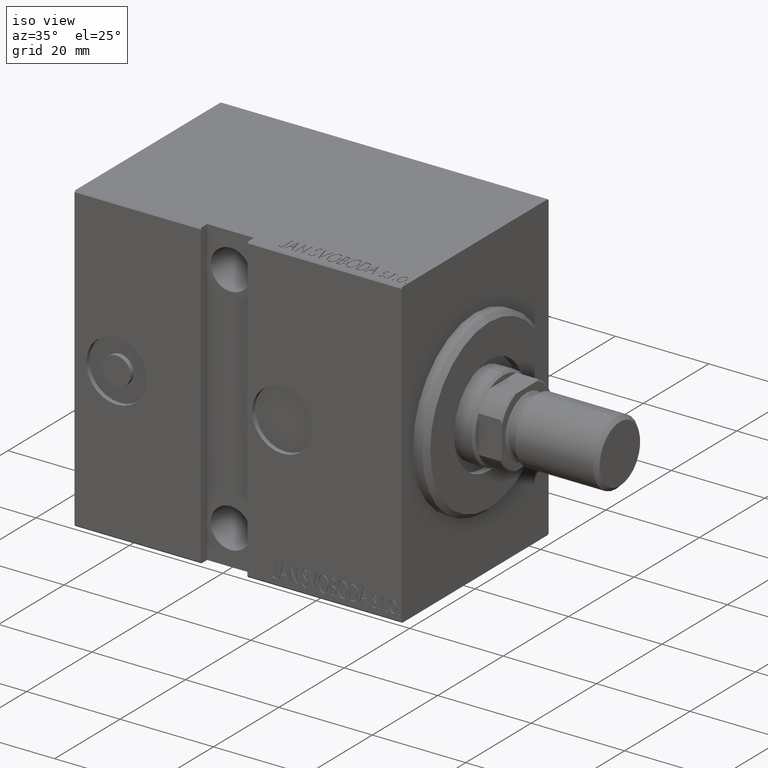
[diagram: clean part render]
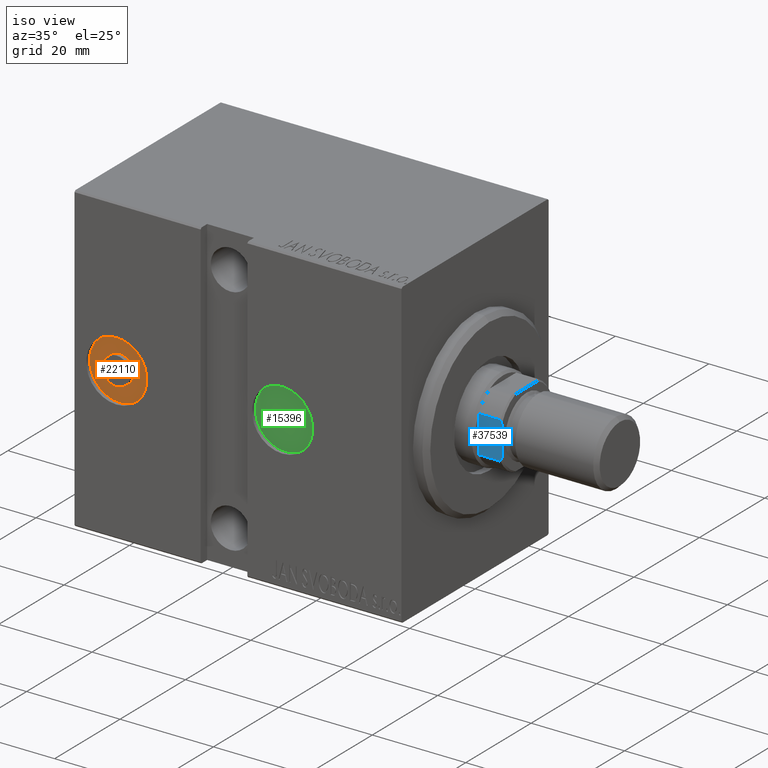
[diagram: same view with three faces highlighted in distinct colors, each labeled with its STEP entity id]
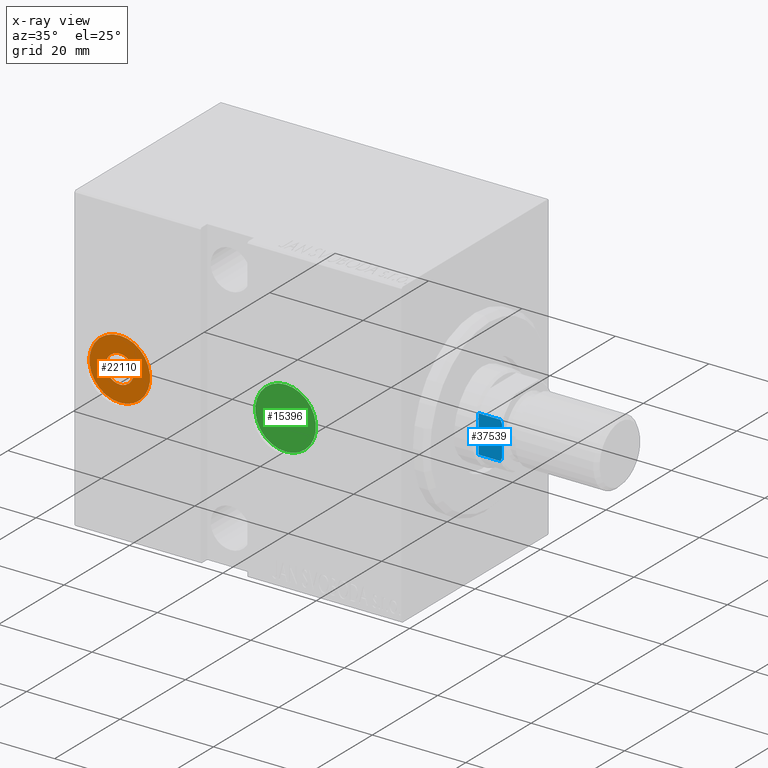
[diagram: x-ray of the same camera — body ghosted, the three highlighted faces saturated]
A machine part, iso view with three faces highlighted in distinct colors.
The next image is the same camera in x-ray (body ghosted, the three faces saturated) — at least one of them is partly hidden behind the body in this view.
Their STEP definitions:

[orange] entity #22110 — the highlighted planar face has unit normal (-0, -1, 0).
#1685 = DIRECTION ( 'NONE',  ( 1.848892746611746419E-32, 1.000000000000000000, 8.851255261214056290E-17 ) ) ;
#1911 = ORIENTED_EDGE ( 'NONE', *, *, #18059, .F. ) ;
#3103 = ORIENTED_EDGE ( 'NONE', *, *, #16566, .T. ) ;
#3755 = DIRECTION ( 'NONE',  ( 1.848892746611746419E-32, 1.000000000000000000, 8.851255261214056290E-17 ) ) ;
#4606 = ORIENTED_EDGE ( 'NONE', *, *, #17651, .T. ) ;
#4622 = DIRECTION ( 'NONE',  ( 1.848892746611746419E-32, 1.000000000000000000, 8.851255261214056290E-17 ) ) ;
#5827 = CIRCLE ( 'NONE', #12781, 3.000000000000007994 ) ;
#6565 = VERTEX_POINT ( 'NONE', #15745 ) ;
#6833 = CARTESIAN_POINT ( 'NONE',  ( 61.00000000000001421, 21.50000000000000000, 3.000000000000010214 ) ) ;
#6863 = VERTEX_POINT ( 'NONE', #13907 ) ;
#7383 = ORIENTED_EDGE ( 'NONE', *, *, #40901, .F. ) ;
#8944 = CARTESIAN_POINT ( 'NONE',  ( 61.00000000000001421, 21.50000000000000000, -6.499999999999999112 ) ) ;
#10196 = PLANE ( 'NONE',  #15648 ) ;
#11094 = CIRCLE ( 'NONE', #35436, 3.000000000000007994 ) ;
#11148 = DIRECTION ( 'NONE',  ( 0.000000000000000000, 0.000000000000000000, 1.000000000000000000 ) ) ;
#11541 = EDGE_LOOP ( 'NONE', ( #3103, #4606 ) ) ;
#11685 = DIRECTION ( 'NONE',  ( 0.000000000000000000, 0.000000000000000000, 1.000000000000000000 ) ) ;
#12753 = AXIS2_PLACEMENT_3D ( 'NONE', #25821, #1685, #11685 ) ;
#12781 = AXIS2_PLACEMENT_3D ( 'NONE', #13816, #20135, #40146 ) ;
#13816 = CARTESIAN_POINT ( 'NONE',  ( 61.00000000000001421, 21.50000000000000000, 2.275763105547195299E-15 ) ) ;
#13907 = CARTESIAN_POINT ( 'NONE',  ( 61.00000000000001421, 21.50000000000000000, -3.000000000000006217 ) ) ;
#13952 = EDGE_LOOP ( 'NONE', ( #1911, #7383 ) ) ;
#15648 = AXIS2_PLACEMENT_3D ( 'NONE', #26524, #33047, #23676 ) ;
#15745 = CARTESIAN_POINT ( 'NONE',  ( 61.00000000000001421, 21.50000000000000000, 6.500000000000004441 ) ) ;
#16234 = CIRCLE ( 'NONE', #12753, 6.500000000000001776 ) ;
#16521 = FACE_OUTER_BOUND ( 'NONE', #11541, .T. ) ;
#16566 = EDGE_CURVE ( 'NONE', #6565, #28240, #16234, .T. ) ;
#17651 = EDGE_CURVE ( 'NONE', #28240, #6565, #23165, .T. ) ;
#18059 = EDGE_CURVE ( 'NONE', #34069, #6863, #5827, .T. ) ;
#20135 = DIRECTION ( 'NONE',  ( 1.848892746611746419E-32, 1.000000000000000000, 8.851255261214056290E-17 ) ) ;
#22110 = ADVANCED_FACE ( 'NONE', ( #33683, #16521 ), #10196, .T. ) ;
#23165 = CIRCLE ( 'NONE', #28743, 6.500000000000001776 ) ;
#23676 = DIRECTION ( 'NONE',  ( 0.000000000000000000, -8.851255261214056290E-17, 1.000000000000000000 ) ) ;
#23754 = CARTESIAN_POINT ( 'NONE',  ( 61.00000000000001421, 21.50000000000000000, 2.275763105547195299E-15 ) ) ;
#23764 = CARTESIAN_POINT ( 'NONE',  ( 61.00000000000001421, 21.50000000000000000, 2.275763105547195299E-15 ) ) ;
#25821 = CARTESIAN_POINT ( 'NONE',  ( 61.00000000000001421, 21.50000000000000000, 2.275763105547195299E-15 ) ) ;
#26524 = CARTESIAN_POINT ( 'NONE',  ( 4.160008679876429443E-31, 21.50000000000000000, 1.865370726429394705E-15 ) ) ;
#28240 = VERTEX_POINT ( 'NONE', #8944 ) ;
#28743 = AXIS2_PLACEMENT_3D ( 'NONE', #23764, #4622, #11148 ) ;
#33047 = DIRECTION ( 'NONE',  ( 1.848892746611746419E-32, 1.000000000000000000, 8.851255261214056290E-17 ) ) ;
#33683 = FACE_BOUND ( 'NONE', #13952, .T. ) ;
#34069 = VERTEX_POINT ( 'NONE', #6833 ) ;
#35436 = AXIS2_PLACEMENT_3D ( 'NONE', #23754, #3755, #36602 ) ;
#36602 = DIRECTION ( 'NONE',  ( 0.000000000000000000, 0.000000000000000000, 1.000000000000000000 ) ) ;
#40146 = DIRECTION ( 'NONE',  ( 0.000000000000000000, 0.000000000000000000, 1.000000000000000000 ) ) ;
#40901 = EDGE_CURVE ( 'NONE', #6863, #34069, #11094, .T. ) ;

[blue] entity #37539 — the highlighted planar face has unit normal (0, 1, 0).
#1016 = ORIENTED_EDGE ( 'NONE', *, *, #37237, .T. ) ;
#1708 = VERTEX_POINT ( 'NONE', #23343 ) ;
#2363 = EDGE_CURVE ( 'NONE', #30855, #14914, #7216, .T. ) ;
#4306 = DIRECTION ( 'NONE',  ( 0.000000000000000000, -0.000000000000000000, 1.000000000000000000 ) ) ;
#4523 = B_SPLINE_CURVE_WITH_KNOTS ( 'NONE', 3,
 ( #31551, #15033, #14378, #11770 ),
 .UNSPECIFIED., .F., .F.,
 ( 4, 4 ),
 ( 0.000000000000000000, 0.0007477064084242632681 ),
 .UNSPECIFIED. ) ;
#7019 = DIRECTION ( 'NONE',  ( -0.000000000000000000, -0.000000000000000000, 1.000000000000000000 ) ) ;
#7216 = B_SPLINE_CURVE_WITH_KNOTS ( 'NONE', 3,
 ( #33896, #17372, #30628, #28884 ),
 .UNSPECIFIED., .F., .F.,
 ( 4, 4 ),
 ( 1.301042606982605321E-18, 0.0007477064084242215263 ),
 .UNSPECIFIED. ) ;
#8959 = VECTOR ( 'NONE', #16579, 1000.000000000000000 ) ;
#10048 = CARTESIAN_POINT ( 'NONE',  ( -7.499999999999999112, -7.499999999999998224, 75.00000000000001421 ) ) ;
#11392 = EDGE_CURVE ( 'NONE', #1708, #34159, #30718, .T. ) ;
#11770 = CARTESIAN_POINT ( 'NONE',  ( 3.315116890850187570, -7.499999999999996447, 75.00000000000001421 ) ) ;
#11966 = CARTESIAN_POINT ( 'NONE',  ( -7.499999999999999112, -7.499999999999998224, 70.00000000000000000 ) ) ;
#11997 = DIRECTION ( 'NONE',  ( -0.000000000000000000, -0.000000000000000000, 1.000000000000000000 ) ) ;
#12392 = DIRECTION ( 'NONE',  ( 1.000000000000000000, 0.000000000000000000, 0.000000000000000000 ) ) ;
#12822 = CARTESIAN_POINT ( 'NONE',  ( -3.315116890850222653, -7.499999999999998224, 75.00000000000001421 ) ) ;
#13109 = LINE ( 'NONE', #10048, #8959 ) ;
#13962 = CARTESIAN_POINT ( 'NONE',  ( -4.000000000000000000, -7.500000000000000888, 74.70000000000004547 ) ) ;
#14378 = CARTESIAN_POINT ( 'NONE',  ( 3.546278369582418488, -7.499999999999998224, 74.90654544845632756 ) ) ;
#14656 = ORIENTED_EDGE ( 'NONE', *, *, #25407, .F. ) ;
#14914 = VERTEX_POINT ( 'NONE', #13962 ) ;
#15033 = CARTESIAN_POINT ( 'NONE',  ( 3.774404943294770831, -7.500000000000000888, 74.80616237962600223 ) ) ;
#16567 = AXIS2_PLACEMENT_3D ( 'NONE', #21050, #30394, #4306 ) ;
#16579 = DIRECTION ( 'NONE',  ( 1.000000000000000000, 0.000000000000000000, 0.000000000000000000 ) ) ;
#17372 = CARTESIAN_POINT ( 'NONE',  ( -3.546278369582397616, -7.499999999999998224, 74.90654544845624230 ) ) ;
#18033 = VERTEX_POINT ( 'NONE', #36878 ) ;
#19529 = ORIENTED_EDGE ( 'NONE', *, *, #38460, .T. ) ;
#21050 = CARTESIAN_POINT ( 'NONE',  ( -7.499999999999999112, -7.499999999999998224, 75.00000000000001421 ) ) ;
#23343 = CARTESIAN_POINT ( 'NONE',  ( 4.000000000000000000, -7.500000000000000888, 70.00000000000001421 ) ) ;
#23399 = ORIENTED_EDGE ( 'NONE', *, *, #38888, .F. ) ;
#23544 = CARTESIAN_POINT ( 'NONE',  ( 4.000000000000000000, -7.500000000000000888, -0.001000000000001000089 ) ) ;
#24604 = LINE ( 'NONE', #37878, #26164 ) ;
#25407 = EDGE_CURVE ( 'NONE', #18033, #14914, #24604, .T. ) ;
#26164 = VECTOR ( 'NONE', #11997, 1000.000000000000000 ) ;
#27144 = PLANE ( 'NONE',  #16567 ) ;
#28884 = CARTESIAN_POINT ( 'NONE',  ( -4.000000000000000000, -7.500000000000000888, 74.70000000000004547 ) ) ;
#28924 = LINE ( 'NONE', #11966, #29090 ) ;
#29090 = VECTOR ( 'NONE', #12392, 1000.000000000000000 ) ;
#30394 = DIRECTION ( 'NONE',  ( 0.000000000000000000, 1.000000000000000000, 0.000000000000000000 ) ) ;
#30628 = CARTESIAN_POINT ( 'NONE',  ( -3.774404943294797921, -7.499999999999998224, 74.80616237962605908 ) ) ;
#30718 = LINE ( 'NONE', #23544, #39699 ) ;
#30855 = VERTEX_POINT ( 'NONE', #12822 ) ;
#31551 = CARTESIAN_POINT ( 'NONE',  ( 4.000000000000000000, -7.500000000000000888, 74.70000000000001705 ) ) ;
#33896 = CARTESIAN_POINT ( 'NONE',  ( -3.315116890850222653, -7.499999999999998224, 75.00000000000001421 ) ) ;
#34159 = VERTEX_POINT ( 'NONE', #40555 ) ;
#35046 = VERTEX_POINT ( 'NONE', #35121 ) ;
#35121 = CARTESIAN_POINT ( 'NONE',  ( 3.315116890850187570, -7.499999999999996447, 75.00000000000001421 ) ) ;
#36878 = CARTESIAN_POINT ( 'NONE',  ( -4.000000000000000000, -7.500000000000000888, 70.00000000000001421 ) ) ;
#37237 = EDGE_CURVE ( 'NONE', #18033, #1708, #28924, .T. ) ;
#37365 = FACE_OUTER_BOUND ( 'NONE', #41081, .T. ) ;
#37539 = ADVANCED_FACE ( 'NONE', ( #37365 ), #27144, .F. ) ;
#37647 = ORIENTED_EDGE ( 'NONE', *, *, #2363, .T. ) ;
#37878 = CARTESIAN_POINT ( 'NONE',  ( -4.000000000000000000, -7.500000000000000888, -0.001000000000001000089 ) ) ;
#38460 = EDGE_CURVE ( 'NONE', #34159, #35046, #4523, .T. ) ;
#38888 = EDGE_CURVE ( 'NONE', #30855, #35046, #13109, .T. ) ;
#39699 = VECTOR ( 'NONE', #7019, 1000.000000000000000 ) ;
#40555 = CARTESIAN_POINT ( 'NONE',  ( 4.000000000000000000, -7.500000000000000888, 74.70000000000001705 ) ) ;
#41018 = ORIENTED_EDGE ( 'NONE', *, *, #11392, .T. ) ;
#41081 = EDGE_LOOP ( 'NONE', ( #41018, #19529, #23399, #37647, #14656, #1016 ) ) ;

[green] entity #15396 — the highlighted planar face has unit normal (-0, -1, 0).
#1425 = EDGE_LOOP ( 'NONE', ( #28713, #13062 ) ) ;
#1719 = DIRECTION ( 'NONE',  ( 1.848892746611746419E-32, 1.000000000000000000, 8.851255261214056290E-17 ) ) ;
#3015 = PLANE ( 'NONE',  #23820 ) ;
#3187 = CIRCLE ( 'NONE', #33724, 6.499999999999997335 ) ;
#3980 = CARTESIAN_POINT ( 'NONE',  ( 25.50000000000000000, 21.50000000000000000, 6.500000000000000000 ) ) ;
#5652 = AXIS2_PLACEMENT_3D ( 'NONE', #38273, #1719, #8235 ) ;
#6874 = EDGE_CURVE ( 'NONE', #41846, #30159, #15371, .T. ) ;
#6984 = DIRECTION ( 'NONE',  ( 0.000000000000000000, 0.000000000000000000, 1.000000000000000000 ) ) ;
#8235 = DIRECTION ( 'NONE',  ( 0.000000000000000000, 0.000000000000000000, 1.000000000000000000 ) ) ;
#10892 = DIRECTION ( 'NONE',  ( 1.848892746611746419E-32, 1.000000000000000000, 8.851255261214056290E-17 ) ) ;
#13062 = ORIENTED_EDGE ( 'NONE', *, *, #6874, .T. ) ;
#15371 = CIRCLE ( 'NONE', #5652, 6.499999999999997335 ) ;
#15396 = ADVANCED_FACE ( 'NONE', ( #19328 ), #3015, .T. ) ;
#19328 = FACE_OUTER_BOUND ( 'NONE', #1425, .T. ) ;
#23507 = CARTESIAN_POINT ( 'NONE',  ( 25.50000000000000000, 21.50000000000000000, 2.275763105547195299E-15 ) ) ;
#23673 = EDGE_CURVE ( 'NONE', #30159, #41846, #3187, .T. ) ;
#23820 = AXIS2_PLACEMENT_3D ( 'NONE', #29544, #29336, #32588 ) ;
#28713 = ORIENTED_EDGE ( 'NONE', *, *, #23673, .T. ) ;
#29336 = DIRECTION ( 'NONE',  ( 1.848892746611746419E-32, 1.000000000000000000, 8.851255261214056290E-17 ) ) ;
#29544 = CARTESIAN_POINT ( 'NONE',  ( 4.160008679876429443E-31, 21.50000000000000000, 1.865370726429394705E-15 ) ) ;
#30159 = VERTEX_POINT ( 'NONE', #3980 ) ;
#32588 = DIRECTION ( 'NONE',  ( 0.000000000000000000, -8.851255261214056290E-17, 1.000000000000000000 ) ) ;
#33724 = AXIS2_PLACEMENT_3D ( 'NONE', #23507, #10892, #6984 ) ;
#35405 = CARTESIAN_POINT ( 'NONE',  ( 25.50000000000000000, 21.50000000000000000, -6.499999999999994671 ) ) ;
#38273 = CARTESIAN_POINT ( 'NONE',  ( 25.50000000000000000, 21.50000000000000000, 2.275763105547195299E-15 ) ) ;
#41846 = VERTEX_POINT ( 'NONE', #35405 ) ;